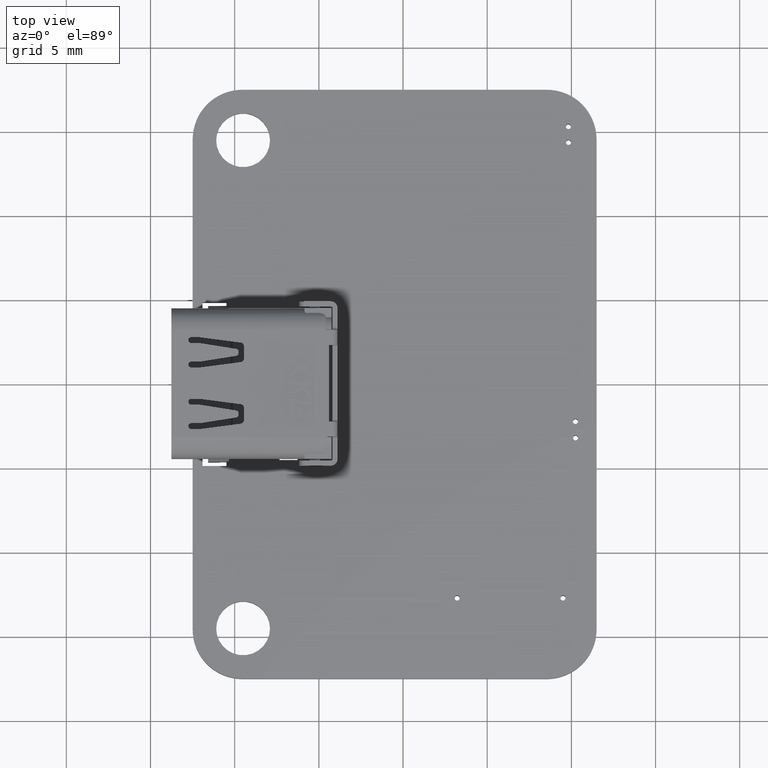
[diagram: clean part render]
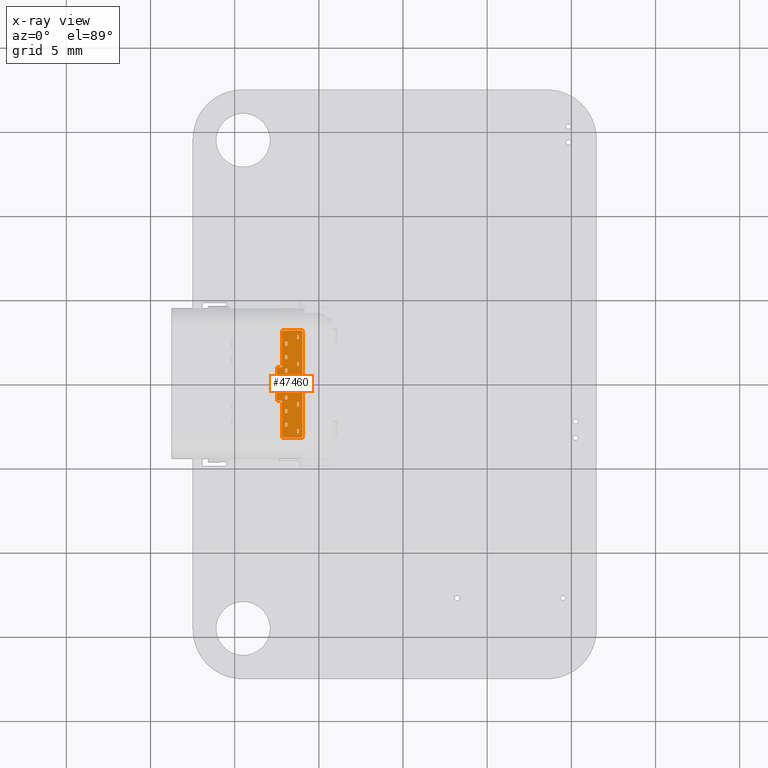
[diagram: x-ray — body ghosted, one internal face saturated and labeled with its STEP entity id]
A machine part, top view, then the same camera in x-ray: the body is ghosted and one INTERNAL B-rep face — a face not visible from any outside direction — is saturated and labeled: STEP entity #47460.
In plain terms, the highlighted planar face has unit normal (-0, 0, 1).
Its self-contained STEP definition (entity closure, byte-faithful):
#47377 = VERTEX_POINT('',#47378);
#47378 = CARTESIAN_POINT('',(3.169999799134,-1.440004854,-1.519628331984
    ));
#47384 = EDGE_CURVE('',#47385,#47377,#47387,.T.);
#47385 = VERTEX_POINT('',#47386);
#47386 = CARTESIAN_POINT('',(3.169999799134,-1.440004854,-0.299628354976
    ));
#47387 = LINE('',#47388,#47389);
#47388 = CARTESIAN_POINT('',(3.169999799134,-1.440004854,-0.299628354976
    ));
#47389 = VECTOR('',#47390,1.);
#47390 = DIRECTION('',(5.751319383497E-014,0.E+000,-1.));
#47410 = VERTEX_POINT('',#47411);
#47411 = CARTESIAN_POINT('',(-3.180000124014,-1.440004854,
    -1.519628331984));
#47417 = EDGE_CURVE('',#47377,#47410,#47418,.T.);
#47418 = LINE('',#47419,#47420);
#47419 = CARTESIAN_POINT('',(3.169999799134,-1.440004854,-1.519628331984
    ));
#47420 = VECTOR('',#47421,1.);
#47421 = DIRECTION('',(-1.,0.E+000,0.E+000));
#47433 = EDGE_CURVE('',#47410,#47434,#47436,.T.);
#47434 = VERTEX_POINT('',#47435);
#47435 = CARTESIAN_POINT('',(-3.180000124014,-1.440004854,
    -0.299628354976));
#47436 = LINE('',#47437,#47438);
#47437 = CARTESIAN_POINT('',(-3.180000124014,-1.440004854,
    -1.519628331984));
#47438 = VECTOR('',#47439,1.);
#47439 = DIRECTION('',(0.E+000,0.E+000,1.));
#47460 = ADVANCED_FACE('',(#47461,#47504,#47538,#47572,#47606,#47640,
    #47674,#47708,#47742,#47776,#47810,#47844,#47878),#47912,.F.);
#47461 = FACE_BOUND('',#47462,.F.);
#47462 = EDGE_LOOP('',(#47463,#47471,#47479,#47487,#47495,#47501,#47502,
    #47503));
#47463 = ORIENTED_EDGE('',*,*,#47464,.T.);
#47464 = EDGE_CURVE('',#47434,#47465,#47467,.T.);
#47465 = VERTEX_POINT('',#47466);
#47466 = CARTESIAN_POINT('',(-1.005000209584,-1.440004854,
    -0.299628354976));
#47467 = LINE('',#47468,#47469);
#47468 = CARTESIAN_POINT('',(-3.180000124014,-1.440004854,
    -0.299628354976));
#47469 = VECTOR('',#47470,1.);
#47470 = DIRECTION('',(1.,0.E+000,0.E+000));
#47471 = ORIENTED_EDGE('',*,*,#47472,.T.);
#47472 = EDGE_CURVE('',#47465,#47473,#47475,.T.);
#47473 = VERTEX_POINT('',#47474);
#47474 = CARTESIAN_POINT('',(-1.005000209584,-1.440004854,
    -3.078949022731E-003));
#47475 = LINE('',#47476,#47477);
#47476 = CARTESIAN_POINT('',(-1.005000209584,-1.440004854,
    -0.299628354976));
#47477 = VECTOR('',#47478,1.);
#47478 = DIRECTION('',(-2.965093228486E-013,0.E+000,1.));
#47479 = ORIENTED_EDGE('',*,*,#47480,.T.);
#47480 = EDGE_CURVE('',#47473,#47481,#47483,.T.);
#47481 = VERTEX_POINT('',#47482);
#47482 = CARTESIAN_POINT('',(0.994999884705,-1.440004854,
    -3.078949022731E-003));
#47483 = LINE('',#47484,#47485);
#47484 = CARTESIAN_POINT('',(-1.005000209584,-1.440004854,
    -3.078949022731E-003));
#47485 = VECTOR('',#47486,1.);
#47486 = DIRECTION('',(1.,0.E+000,0.E+000));
#47487 = ORIENTED_EDGE('',*,*,#47488,.T.);
#47488 = EDGE_CURVE('',#47481,#47489,#47491,.T.);
#47489 = VERTEX_POINT('',#47490);
#47490 = CARTESIAN_POINT('',(0.994999884705,-1.440004854,-0.299628354976
    ));
#47491 = LINE('',#47492,#47493);
#47492 = CARTESIAN_POINT('',(0.994999884705,-1.440004854,
    -3.078949022731E-003));
#47493 = VECTOR('',#47494,1.);
#47494 = DIRECTION('',(0.E+000,0.E+000,-1.));
#47495 = ORIENTED_EDGE('',*,*,#47496,.T.);
#47496 = EDGE_CURVE('',#47489,#47385,#47497,.T.);
#47497 = LINE('',#47498,#47499);
#47498 = CARTESIAN_POINT('',(0.994999884705,-1.440004854,-0.299628354976
    ));
#47499 = VECTOR('',#47500,1.);
#47500 = DIRECTION('',(1.,0.E+000,0.E+000));
#47501 = ORIENTED_EDGE('',*,*,#47384,.T.);
#47502 = ORIENTED_EDGE('',*,*,#47417,.T.);
#47503 = ORIENTED_EDGE('',*,*,#47433,.T.);
#47504 = FACE_BOUND('',#47505,.F.);
#47505 = EDGE_LOOP('',(#47506,#47516,#47524,#47532));
#47506 = ORIENTED_EDGE('',*,*,#47507,.T.);
#47507 = EDGE_CURVE('',#47508,#47510,#47512,.T.);
#47508 = VERTEX_POINT('',#47509);
#47509 = CARTESIAN_POINT('',(-2.52000001865,-1.440004854,-0.619628206027
    ));
#47510 = VERTEX_POINT('',#47511);
#47511 = CARTESIAN_POINT('',(-2.279999922707,-1.440004854,
    -0.619628206027));
#47512 = LINE('',#47513,#47514);
#47513 = CARTESIAN_POINT('',(-2.52000001865,-1.440004854,-0.619628206027
    ));
#47514 = VECTOR('',#47515,1.);
#47515 = DIRECTION('',(1.,0.E+000,3.099371371396E-014));
#47516 = ORIENTED_EDGE('',*,*,#47517,.F.);
#47517 = EDGE_CURVE('',#47518,#47510,#47520,.T.);
#47518 = VERTEX_POINT('',#47519);
#47519 = CARTESIAN_POINT('',(-2.279999918854,-1.440004854,
    -0.499628222974));
#47520 = LINE('',#47521,#47522);
#47521 = CARTESIAN_POINT('',(-2.279999918854,-1.440004854,
    -0.499628222974));
#47522 = VECTOR('',#47523,1.);
#47523 = DIRECTION('',(-3.211142176409E-008,0.E+000,-1.));
#47524 = ORIENTED_EDGE('',*,*,#47525,.T.);
#47525 = EDGE_CURVE('',#47518,#47526,#47528,.T.);
#47526 = VERTEX_POINT('',#47527);
#47527 = CARTESIAN_POINT('',(-2.520000018651,-1.440004854,
    -0.499628222974));
#47528 = LINE('',#47529,#47530);
#47529 = CARTESIAN_POINT('',(-2.279999918854,-1.440004854,
    -0.499628222974));
#47530 = VECTOR('',#47531,1.);
#47531 = DIRECTION('',(-1.,0.E+000,3.006852774718E-014));
#47532 = ORIENTED_EDGE('',*,*,#47533,.F.);
#47533 = EDGE_CURVE('',#47508,#47526,#47534,.T.);
#47534 = LINE('',#47535,#47536);
#47535 = CARTESIAN_POINT('',(-2.52000001865,-1.440004854,-0.619628206027
    ));
#47536 = VECTOR('',#47537,1.);
#47537 = DIRECTION('',(-1.40628269647E-013,0.E+000,1.));
#47538 = FACE_BOUND('',#47539,.F.);
#47539 = EDGE_LOOP('',(#47540,#47550,#47558,#47566));
#47540 = ORIENTED_EDGE('',*,*,#47541,.T.);
#47541 = EDGE_CURVE('',#47542,#47544,#47546,.T.);
#47542 = VERTEX_POINT('',#47543);
#47543 = CARTESIAN_POINT('',(0.679999978641,-1.440004854,-0.619628206027
    ));
#47544 = VERTEX_POINT('',#47545);
#47545 = CARTESIAN_POINT('',(0.920000001989,-1.440004854,-0.619628206027
    ));
#47546 = LINE('',#47547,#47548);
#47547 = CARTESIAN_POINT('',(0.679999978641,-1.440004854,-0.619628206027
    ));
#47548 = VECTOR('',#47549,1.);
#47549 = DIRECTION('',(1.,0.E+000,0.E+000));
#47550 = ORIENTED_EDGE('',*,*,#47551,.T.);
#47551 = EDGE_CURVE('',#47544,#47552,#47554,.T.);
#47552 = VERTEX_POINT('',#47553);
#47553 = CARTESIAN_POINT('',(0.920000001989,-1.440004854,-0.499628222974
    ));
#47554 = LINE('',#47555,#47556);
#47555 = CARTESIAN_POINT('',(0.920000001989,-1.440004854,-0.619628206027
    ));
#47556 = VECTOR('',#47557,1.);
#47557 = DIRECTION('',(5.73615310402E-014,0.E+000,1.));
#47558 = ORIENTED_EDGE('',*,*,#47559,.T.);
#47559 = EDGE_CURVE('',#47552,#47560,#47562,.T.);
#47560 = VERTEX_POINT('',#47561);
#47561 = CARTESIAN_POINT('',(0.679999978641,-1.440004854,-0.499628222974
    ));
#47562 = LINE('',#47563,#47564);
#47563 = CARTESIAN_POINT('',(0.920000001989,-1.440004854,-0.499628222974
    ));
#47564 = VECTOR('',#47565,1.);
#47565 = DIRECTION('',(-1.,0.E+000,0.E+000));
#47566 = ORIENTED_EDGE('',*,*,#47567,.F.);
#47567 = EDGE_CURVE('',#47542,#47560,#47568,.T.);
#47568 = LINE('',#47569,#47570);
#47569 = CARTESIAN_POINT('',(0.679999978641,-1.440004854,-0.619628206027
    ));
#47570 = VECTOR('',#47571,1.);
#47571 = DIRECTION('',(9.251859845194E-014,0.E+000,1.));
#47572 = FACE_BOUND('',#47573,.F.);
#47573 = EDGE_LOOP('',(#47574,#47584,#47592,#47600));
#47574 = ORIENTED_EDGE('',*,*,#47575,.T.);
#47575 = EDGE_CURVE('',#47576,#47578,#47580,.T.);
#47576 = VERTEX_POINT('',#47577);
#47577 = CARTESIAN_POINT('',(2.519999981322,-1.440004854,-0.619628206027
    ));
#47578 = VERTEX_POINT('',#47579);
#47579 = CARTESIAN_POINT('',(2.519999981322,-1.440004854,-0.499628222974
    ));
#47580 = LINE('',#47581,#47582);
#47581 = CARTESIAN_POINT('',(2.519999981322,-1.440004854,-0.619628206027
    ));
#47582 = VECTOR('',#47583,1.);
#47583 = DIRECTION('',(-1.073215742043E-013,0.E+000,1.));
#47584 = ORIENTED_EDGE('',*,*,#47585,.T.);
#47585 = EDGE_CURVE('',#47578,#47586,#47588,.T.);
#47586 = VERTEX_POINT('',#47587);
#47587 = CARTESIAN_POINT('',(2.279999893694,-1.440004854,-0.499628222974
    ));
#47588 = LINE('',#47589,#47590);
#47589 = CARTESIAN_POINT('',(2.519999981322,-1.440004854,-0.499628222974
    ));
#47590 = VECTOR('',#47591,1.);
#47591 = DIRECTION('',(-1.,0.E+000,-3.02998256508E-014));
#47592 = ORIENTED_EDGE('',*,*,#47593,.T.);
#47593 = EDGE_CURVE('',#47586,#47594,#47596,.T.);
#47594 = VERTEX_POINT('',#47595);
#47595 = CARTESIAN_POINT('',(2.279999891823,-1.440004854,-0.619628206027
    ));
#47596 = LINE('',#47597,#47598);
#47597 = CARTESIAN_POINT('',(2.279999893694,-1.440004854,-0.499628222974
    ));
#47598 = VECTOR('',#47599,1.);
#47599 = DIRECTION('',(-1.55934139493E-008,0.E+000,-1.));
#47600 = ORIENTED_EDGE('',*,*,#47601,.T.);
#47601 = EDGE_CURVE('',#47594,#47576,#47602,.T.);
#47602 = LINE('',#47603,#47604);
#47603 = CARTESIAN_POINT('',(2.279999891823,-1.440004854,-0.619628206027
    ));
#47604 = VECTOR('',#47605,1.);
#47605 = DIRECTION('',(1.,0.E+000,-3.099371454619E-014));
#47606 = FACE_BOUND('',#47607,.F.);
#47607 = EDGE_LOOP('',(#47608,#47618,#47626,#47634));
#47608 = ORIENTED_EDGE('',*,*,#47609,.F.);
#47609 = EDGE_CURVE('',#47610,#47612,#47614,.T.);
#47610 = VERTEX_POINT('',#47611);
#47611 = CARTESIAN_POINT('',(2.679999899548,-1.440004854,-1.319628206023
    ));
#47612 = VERTEX_POINT('',#47613);
#47613 = CARTESIAN_POINT('',(2.679999899549,-1.440004854,-1.19962822297)
  );
#47614 = LINE('',#47615,#47616);
#47615 = CARTESIAN_POINT('',(2.679999899548,-1.440004854,-1.319628206023
    ));
#47616 = VECTOR('',#47617,1.);
#47617 = DIRECTION('',(6.735353967285E-013,0.E+000,1.));
#47618 = ORIENTED_EDGE('',*,*,#47619,.T.);
#47619 = EDGE_CURVE('',#47610,#47620,#47622,.T.);
#47620 = VERTEX_POINT('',#47621);
#47621 = CARTESIAN_POINT('',(2.920000097305,-1.440004854,-1.319628206023
    ));
#47622 = LINE('',#47623,#47624);
#47623 = CARTESIAN_POINT('',(2.679999899548,-1.440004854,-1.319628206023
    ));
#47624 = VECTOR('',#47625,1.);
#47625 = DIRECTION('',(1.,0.E+000,0.E+000));
#47626 = ORIENTED_EDGE('',*,*,#47627,.T.);
#47627 = EDGE_CURVE('',#47620,#47628,#47630,.T.);
#47628 = VERTEX_POINT('',#47629);
#47629 = CARTESIAN_POINT('',(2.920000097305,-1.440004854,-1.19962822297)
  );
#47630 = LINE('',#47631,#47632);
#47631 = CARTESIAN_POINT('',(2.920000097305,-1.440004854,-1.319628206023
    ));
#47632 = VECTOR('',#47633,1.);
#47633 = DIRECTION('',(1.3803774889E-012,0.E+000,1.));
#47634 = ORIENTED_EDGE('',*,*,#47635,.T.);
#47635 = EDGE_CURVE('',#47628,#47612,#47636,.T.);
#47636 = LINE('',#47637,#47638);
#47637 = CARTESIAN_POINT('',(2.920000097305,-1.440004854,-1.19962822297)
  );
#47638 = VECTOR('',#47639,1.);
#47639 = DIRECTION('',(-1.,0.E+000,0.E+000));
#47640 = FACE_BOUND('',#47641,.F.);
#47641 = EDGE_LOOP('',(#47642,#47652,#47660,#47668));
#47642 = ORIENTED_EDGE('',*,*,#47643,.T.);
#47643 = EDGE_CURVE('',#47644,#47646,#47648,.T.);
#47644 = VERTEX_POINT('',#47645);
#47645 = CARTESIAN_POINT('',(1.479999922982,-1.440004854,-0.619628206027
    ));
#47646 = VERTEX_POINT('',#47647);
#47647 = CARTESIAN_POINT('',(1.71999992293,-1.440004854,-0.619628206027)
  );
#47648 = LINE('',#47649,#47650);
#47649 = CARTESIAN_POINT('',(1.479999922982,-1.440004854,-0.619628206027
    ));
#47650 = VECTOR('',#47651,1.);
#47651 = DIRECTION('',(1.,0.E+000,3.099372611077E-014));
#47652 = ORIENTED_EDGE('',*,*,#47653,.F.);
#47653 = EDGE_CURVE('',#47654,#47646,#47656,.T.);
#47654 = VERTEX_POINT('',#47655);
#47655 = CARTESIAN_POINT('',(1.719999922931,-1.440004854,-0.499628222974
    ));
#47656 = LINE('',#47657,#47658);
#47657 = CARTESIAN_POINT('',(1.719999922931,-1.440004854,-0.499628222974
    ));
#47658 = VECTOR('',#47659,1.);
#47659 = DIRECTION('',(-2.979098870153E-013,0.E+000,-1.));
#47660 = ORIENTED_EDGE('',*,*,#47661,.T.);
#47661 = EDGE_CURVE('',#47654,#47662,#47664,.T.);
#47662 = VERTEX_POINT('',#47663);
#47663 = CARTESIAN_POINT('',(1.479999922982,-1.440004854,-0.499628222974
    ));
#47664 = LINE('',#47665,#47666);
#47665 = CARTESIAN_POINT('',(1.719999922931,-1.440004854,-0.499628222974
    ));
#47666 = VECTOR('',#47667,1.);
#47667 = DIRECTION('',(-1.,0.E+000,3.006854025672E-014));
#47668 = ORIENTED_EDGE('',*,*,#47669,.F.);
#47669 = EDGE_CURVE('',#47644,#47662,#47670,.T.);
#47670 = LINE('',#47671,#47672);
#47671 = CARTESIAN_POINT('',(1.479999922982,-1.440004854,-0.619628206027
    ));
#47672 = VECTOR('',#47673,1.);
#47673 = DIRECTION('',(8.456199898507E-013,0.E+000,1.));
#47674 = FACE_BOUND('',#47675,.F.);
#47675 = EDGE_LOOP('',(#47676,#47686,#47694,#47702));
#47676 = ORIENTED_EDGE('',*,*,#47677,.F.);
#47677 = EDGE_CURVE('',#47678,#47680,#47682,.T.);
#47678 = VERTEX_POINT('',#47679);
#47679 = CARTESIAN_POINT('',(1.079999940057,-1.440004854,-1.319628206023
    ));
#47680 = VERTEX_POINT('',#47681);
#47681 = CARTESIAN_POINT('',(1.079999940057,-1.440004854,-1.19962822297)
  );
#47682 = LINE('',#47683,#47684);
#47683 = CARTESIAN_POINT('',(1.079999940057,-1.440004854,-1.319628206023
    ));
#47684 = VECTOR('',#47685,1.);
#47685 = DIRECTION('',(1.210143267748E-012,0.E+000,1.));
#47686 = ORIENTED_EDGE('',*,*,#47687,.T.);
#47687 = EDGE_CURVE('',#47678,#47688,#47690,.T.);
#47688 = VERTEX_POINT('',#47689);
#47689 = CARTESIAN_POINT('',(1.320000021264,-1.440004854,-1.319628206023
    ));
#47690 = LINE('',#47691,#47692);
#47691 = CARTESIAN_POINT('',(1.079999940057,-1.440004854,-1.319628206023
    ));
#47692 = VECTOR('',#47693,1.);
#47693 = DIRECTION('',(1.,0.E+000,0.E+000));
#47694 = ORIENTED_EDGE('',*,*,#47695,.T.);
#47695 = EDGE_CURVE('',#47688,#47696,#47698,.T.);
#47696 = VERTEX_POINT('',#47697);
#47697 = CARTESIAN_POINT('',(1.320000021264,-1.440004854,-1.19962822297)
  );
#47698 = LINE('',#47699,#47700);
#47699 = CARTESIAN_POINT('',(1.320000021264,-1.440004854,-1.319628206023
    ));
#47700 = VECTOR('',#47701,1.);
#47701 = DIRECTION('',(-8.6227333757E-013,0.E+000,1.));
#47702 = ORIENTED_EDGE('',*,*,#47703,.T.);
#47703 = EDGE_CURVE('',#47696,#47680,#47704,.T.);
#47704 = LINE('',#47705,#47706);
#47705 = CARTESIAN_POINT('',(1.320000021264,-1.440004854,-1.19962822297)
  );
#47706 = VECTOR('',#47707,1.);
#47707 = DIRECTION('',(-1.,0.E+000,0.E+000));
#47708 = FACE_BOUND('',#47709,.F.);
#47709 = EDGE_LOOP('',(#47710,#47720,#47728,#47736));
#47710 = ORIENTED_EDGE('',*,*,#47711,.F.);
#47711 = EDGE_CURVE('',#47712,#47714,#47716,.T.);
#47712 = VERTEX_POINT('',#47713);
#47713 = CARTESIAN_POINT('',(0.279999988824,-1.440004854,-1.319628206023
    ));
#47714 = VERTEX_POINT('',#47715);
#47715 = CARTESIAN_POINT('',(0.279999988824,-1.440004854,-1.19962822297)
  );
#47716 = LINE('',#47717,#47718);
#47717 = CARTESIAN_POINT('',(0.279999988824,-1.440004854,-1.319628206023
    ));
#47718 = VECTOR('',#47719,1.);
#47719 = DIRECTION('',(8.557970356784E-014,0.E+000,1.));
#47720 = ORIENTED_EDGE('',*,*,#47721,.T.);
#47721 = EDGE_CURVE('',#47712,#47722,#47724,.T.);
#47722 = VERTEX_POINT('',#47723);
#47723 = CARTESIAN_POINT('',(0.519999982714,-1.440004854,-1.319628206023
    ));
#47724 = LINE('',#47725,#47726);
#47725 = CARTESIAN_POINT('',(0.279999988824,-1.440004854,-1.319628206023
    ));
#47726 = VECTOR('',#47727,1.);
#47727 = DIRECTION('',(1.,0.E+000,0.E+000));
#47728 = ORIENTED_EDGE('',*,*,#47729,.T.);
#47729 = EDGE_CURVE('',#47722,#47730,#47732,.T.);
#47730 = VERTEX_POINT('',#47731);
#47731 = CARTESIAN_POINT('',(0.519999982714,-1.440004854,-1.19962822297)
  );
#47732 = LINE('',#47733,#47734);
#47733 = CARTESIAN_POINT('',(0.519999982714,-1.440004854,-1.319628206023
    ));
#47734 = VECTOR('',#47735,1.);
#47735 = DIRECTION('',(-1.332267817705E-013,0.E+000,1.));
#47736 = ORIENTED_EDGE('',*,*,#47737,.T.);
#47737 = EDGE_CURVE('',#47730,#47714,#47738,.T.);
#47738 = LINE('',#47739,#47740);
#47739 = CARTESIAN_POINT('',(0.519999982714,-1.440004854,-1.19962822297)
  );
#47740 = VECTOR('',#47741,1.);
#47741 = DIRECTION('',(-1.,0.E+000,0.E+000));
#47742 = FACE_BOUND('',#47743,.F.);
#47743 = EDGE_LOOP('',(#47744,#47754,#47762,#47770));
#47744 = ORIENTED_EDGE('',*,*,#47745,.F.);
#47745 = EDGE_CURVE('',#47746,#47748,#47750,.T.);
#47746 = VERTEX_POINT('',#47747);
#47747 = CARTESIAN_POINT('',(-0.520000020268,-1.440004854,
    -1.319628206023));
#47748 = VERTEX_POINT('',#47749);
#47749 = CARTESIAN_POINT('',(-0.520000020268,-1.440004854,-1.19962822297
    ));
#47750 = LINE('',#47751,#47752);
#47751 = CARTESIAN_POINT('',(-0.520000020268,-1.440004854,
    -1.319628206023));
#47752 = VECTOR('',#47753,1.);
#47753 = DIRECTION('',(-1.119475041266E-013,0.E+000,1.));
#47754 = ORIENTED_EDGE('',*,*,#47755,.T.);
#47755 = EDGE_CURVE('',#47746,#47756,#47758,.T.);
#47756 = VERTEX_POINT('',#47757);
#47757 = CARTESIAN_POINT('',(-0.280000026377,-1.440004854,
    -1.319628206023));
#47758 = LINE('',#47759,#47760);
#47759 = CARTESIAN_POINT('',(-0.520000020268,-1.440004854,
    -1.319628206023));
#47760 = VECTOR('',#47761,1.);
#47761 = DIRECTION('',(1.,0.E+000,0.E+000));
#47762 = ORIENTED_EDGE('',*,*,#47763,.T.);
#47763 = EDGE_CURVE('',#47756,#47764,#47766,.T.);
#47764 = VERTEX_POINT('',#47765);
#47765 = CARTESIAN_POINT('',(-0.280000026378,-1.440004854,-1.19962822297
    ));
#47766 = LINE('',#47767,#47768);
#47767 = CARTESIAN_POINT('',(-0.280000026377,-1.440004854,
    -1.319628206023));
#47768 = VECTOR('',#47769,1.);
#47769 = DIRECTION('',(-5.273560111748E-014,0.E+000,1.));
#47770 = ORIENTED_EDGE('',*,*,#47771,.T.);
#47771 = EDGE_CURVE('',#47764,#47748,#47772,.T.);
#47772 = LINE('',#47773,#47774);
#47773 = CARTESIAN_POINT('',(-0.280000026378,-1.440004854,-1.19962822297
    ));
#47774 = VECTOR('',#47775,1.);
#47775 = DIRECTION('',(-1.,0.E+000,0.E+000));
#47776 = FACE_BOUND('',#47777,.F.);
#47777 = EDGE_LOOP('',(#47778,#47788,#47796,#47804));
#47778 = ORIENTED_EDGE('',*,*,#47779,.T.);
#47779 = EDGE_CURVE('',#47780,#47782,#47784,.T.);
#47780 = VERTEX_POINT('',#47781);
#47781 = CARTESIAN_POINT('',(-0.920000038484,-1.440004854,
    -0.619628206027));
#47782 = VERTEX_POINT('',#47783);
#47783 = CARTESIAN_POINT('',(-0.680000016194,-1.440004854,
    -0.619628206027));
#47784 = LINE('',#47785,#47786);
#47785 = CARTESIAN_POINT('',(-0.920000038484,-1.440004854,
    -0.619628206027));
#47786 = VECTOR('',#47787,1.);
#47787 = DIRECTION('',(1.,0.E+000,0.E+000));
#47788 = ORIENTED_EDGE('',*,*,#47789,.T.);
#47789 = EDGE_CURVE('',#47782,#47790,#47792,.T.);
#47790 = VERTEX_POINT('',#47791);
#47791 = CARTESIAN_POINT('',(-0.680000016194,-1.440004854,
    -0.499628222974));
#47792 = LINE('',#47793,#47794);
#47793 = CARTESIAN_POINT('',(-0.680000016194,-1.440004854,
    -0.619628206027));
#47794 = VECTOR('',#47795,1.);
#47795 = DIRECTION('',(-5.828671702472E-014,0.E+000,1.));
#47796 = ORIENTED_EDGE('',*,*,#47797,.T.);
#47797 = EDGE_CURVE('',#47790,#47798,#47800,.T.);
#47798 = VERTEX_POINT('',#47799);
#47799 = CARTESIAN_POINT('',(-0.920000038484,-1.440004854,
    -0.499628222974));
#47800 = LINE('',#47801,#47802);
#47801 = CARTESIAN_POINT('',(-0.680000016194,-1.440004854,
    -0.499628222974));
#47802 = VECTOR('',#47803,1.);
#47803 = DIRECTION('',(-1.,0.E+000,0.E+000));
#47804 = ORIENTED_EDGE('',*,*,#47805,.F.);
#47805 = EDGE_CURVE('',#47780,#47798,#47806,.T.);
#47806 = LINE('',#47807,#47808);
#47807 = CARTESIAN_POINT('',(-0.920000038484,-1.440004854,
    -0.619628206027));
#47808 = VECTOR('',#47809,1.);
#47809 = DIRECTION('',(-1.17498620034E-013,0.E+000,1.));
#47810 = FACE_BOUND('',#47811,.F.);
#47811 = EDGE_LOOP('',(#47812,#47822,#47830,#47838));
#47812 = ORIENTED_EDGE('',*,*,#47813,.F.);
#47813 = EDGE_CURVE('',#47814,#47816,#47818,.T.);
#47814 = VERTEX_POINT('',#47815);
#47815 = CARTESIAN_POINT('',(-1.320000057759,-1.440004854,
    -1.319628206023));
#47816 = VERTEX_POINT('',#47817);
#47817 = CARTESIAN_POINT('',(-1.320000057759,-1.440004854,-1.19962822297
    ));
#47818 = LINE('',#47819,#47820);
#47819 = CARTESIAN_POINT('',(-1.320000057759,-1.440004854,
    -1.319628206023));
#47820 = VECTOR('',#47821,1.);
#47821 = DIRECTION('',(-3.071617468597E-013,0.E+000,1.));
#47822 = ORIENTED_EDGE('',*,*,#47823,.T.);
#47823 = EDGE_CURVE('',#47814,#47824,#47826,.T.);
#47824 = VERTEX_POINT('',#47825);
#47825 = CARTESIAN_POINT('',(-1.079999976553,-1.440004854,
    -1.319628206023));
#47826 = LINE('',#47827,#47828);
#47827 = CARTESIAN_POINT('',(-1.320000057759,-1.440004854,
    -1.319628206023));
#47828 = VECTOR('',#47829,1.);
#47829 = DIRECTION('',(1.,0.E+000,0.E+000));
#47830 = ORIENTED_EDGE('',*,*,#47831,.T.);
#47831 = EDGE_CURVE('',#47824,#47832,#47834,.T.);
#47832 = VERTEX_POINT('',#47833);
#47833 = CARTESIAN_POINT('',(-1.079999976552,-1.440004854,-1.19962822297
    ));
#47834 = LINE('',#47835,#47836);
#47835 = CARTESIAN_POINT('',(-1.079999976553,-1.440004854,
    -1.319628206023));
#47836 = VECTOR('',#47837,1.);
#47837 = DIRECTION('',(3.996803453114E-013,0.E+000,1.));
#47838 = ORIENTED_EDGE('',*,*,#47839,.T.);
#47839 = EDGE_CURVE('',#47832,#47816,#47840,.T.);
#47840 = LINE('',#47841,#47842);
#47841 = CARTESIAN_POINT('',(-1.079999976552,-1.440004854,-1.19962822297
    ));
#47842 = VECTOR('',#47843,1.);
#47843 = DIRECTION('',(-1.,0.E+000,0.E+000));
#47844 = FACE_BOUND('',#47845,.F.);
#47845 = EDGE_LOOP('',(#47846,#47856,#47864,#47872));
#47846 = ORIENTED_EDGE('',*,*,#47847,.T.);
#47847 = EDGE_CURVE('',#47848,#47850,#47852,.T.);
#47848 = VERTEX_POINT('',#47849);
#47849 = CARTESIAN_POINT('',(-1.720000019176,-1.440004854,
    -0.619628206027));
#47850 = VERTEX_POINT('',#47851);
#47851 = CARTESIAN_POINT('',(-1.480000019228,-1.440004854,
    -0.619628206027));
#47852 = LINE('',#47853,#47854);
#47853 = CARTESIAN_POINT('',(-1.720000019176,-1.440004854,
    -0.619628206027));
#47854 = VECTOR('',#47855,1.);
#47855 = DIRECTION('',(1.,0.E+000,-3.099372611083E-014));
#47856 = ORIENTED_EDGE('',*,*,#47857,.T.);
#47857 = EDGE_CURVE('',#47850,#47858,#47860,.T.);
#47858 = VERTEX_POINT('',#47859);
#47859 = CARTESIAN_POINT('',(-1.480000019227,-1.440004854,
    -0.499628222974));
#47860 = LINE('',#47861,#47862);
#47861 = CARTESIAN_POINT('',(-1.480000019228,-1.440004854,
    -0.619628206027));
#47862 = VECTOR('',#47863,1.);
#47863 = DIRECTION('',(7.64203623213E-013,0.E+000,1.));
#47864 = ORIENTED_EDGE('',*,*,#47865,.T.);
#47865 = EDGE_CURVE('',#47858,#47866,#47868,.T.);
#47866 = VERTEX_POINT('',#47867);
#47867 = CARTESIAN_POINT('',(-1.720000019175,-1.440004854,
    -0.499628222974));
#47868 = LINE('',#47869,#47870);
#47869 = CARTESIAN_POINT('',(-1.480000019227,-1.440004854,
    -0.499628222974));
#47870 = VECTOR('',#47871,1.);
#47871 = DIRECTION('',(-1.,0.E+000,-3.029983672029E-014));
#47872 = ORIENTED_EDGE('',*,*,#47873,.T.);
#47873 = EDGE_CURVE('',#47866,#47848,#47874,.T.);
#47874 = LINE('',#47875,#47876);
#47875 = CARTESIAN_POINT('',(-1.720000019175,-1.440004854,
    -0.499628222974));
#47876 = VECTOR('',#47877,1.);
#47877 = DIRECTION('',(-8.696748254484E-013,0.E+000,-1.));
#47878 = FACE_BOUND('',#47879,.F.);
#47879 = EDGE_LOOP('',(#47880,#47890,#47898,#47906));
#47880 = ORIENTED_EDGE('',*,*,#47881,.F.);
#47881 = EDGE_CURVE('',#47882,#47884,#47886,.T.);
#47882 = VERTEX_POINT('',#47883);
#47883 = CARTESIAN_POINT('',(-2.920000133801,-1.440004854,
    -1.319628206023));
#47884 = VERTEX_POINT('',#47885);
#47885 = CARTESIAN_POINT('',(-2.9200001338,-1.440004854,-1.19962822297)
  );
#47886 = LINE('',#47887,#47888);
#47887 = CARTESIAN_POINT('',(-2.920000133801,-1.440004854,
    -1.319628206023));
#47888 = VECTOR('',#47889,1.);
#47889 = DIRECTION('',(2.294461241603E-013,0.E+000,1.));
#47890 = ORIENTED_EDGE('',*,*,#47891,.T.);
#47891 = EDGE_CURVE('',#47882,#47892,#47894,.T.);
#47892 = VERTEX_POINT('',#47893);
#47893 = CARTESIAN_POINT('',(-2.679999936044,-1.440004854,
    -1.319628206023));
#47894 = LINE('',#47895,#47896);
#47895 = CARTESIAN_POINT('',(-2.920000133801,-1.440004854,
    -1.319628206023));
#47896 = VECTOR('',#47897,1.);
#47897 = DIRECTION('',(1.,0.E+000,0.E+000));
#47898 = ORIENTED_EDGE('',*,*,#47899,.T.);
#47899 = EDGE_CURVE('',#47892,#47900,#47902,.T.);
#47900 = VERTEX_POINT('',#47901);
#47901 = CARTESIAN_POINT('',(-2.679999936044,-1.440004854,-1.19962822297
    ));
#47902 = LINE('',#47903,#47904);
#47903 = CARTESIAN_POINT('',(-2.679999936044,-1.440004854,
    -1.319628206023));
#47904 = VECTOR('',#47905,1.);
#47905 = DIRECTION('',(9.325874723933E-013,0.E+000,1.));
#47906 = ORIENTED_EDGE('',*,*,#47907,.T.);
#47907 = EDGE_CURVE('',#47900,#47884,#47908,.T.);
#47908 = LINE('',#47909,#47910);
#47909 = CARTESIAN_POINT('',(-2.679999936044,-1.440004854,-1.19962822297
    ));
#47910 = VECTOR('',#47911,1.);
#47911 = DIRECTION('',(-1.,0.E+000,0.E+000));
#47912 = PLANE('',#47913);
#47913 = AXIS2_PLACEMENT_3D('',#47914,#47915,#47916);
#47914 = CARTESIAN_POINT('',(-5.0001625E-003,-1.440004854,-0.7613536405)
  );
#47915 = DIRECTION('',(0.E+000,1.,0.E+000));
#47916 = DIRECTION('',(0.E+000,0.E+000,-1.));